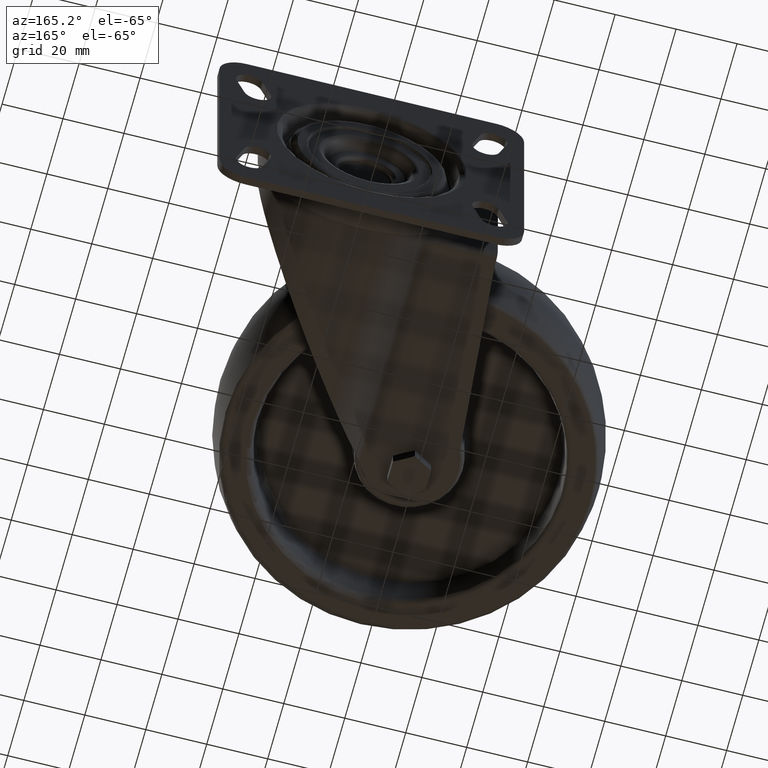
[diagram: clean part render]
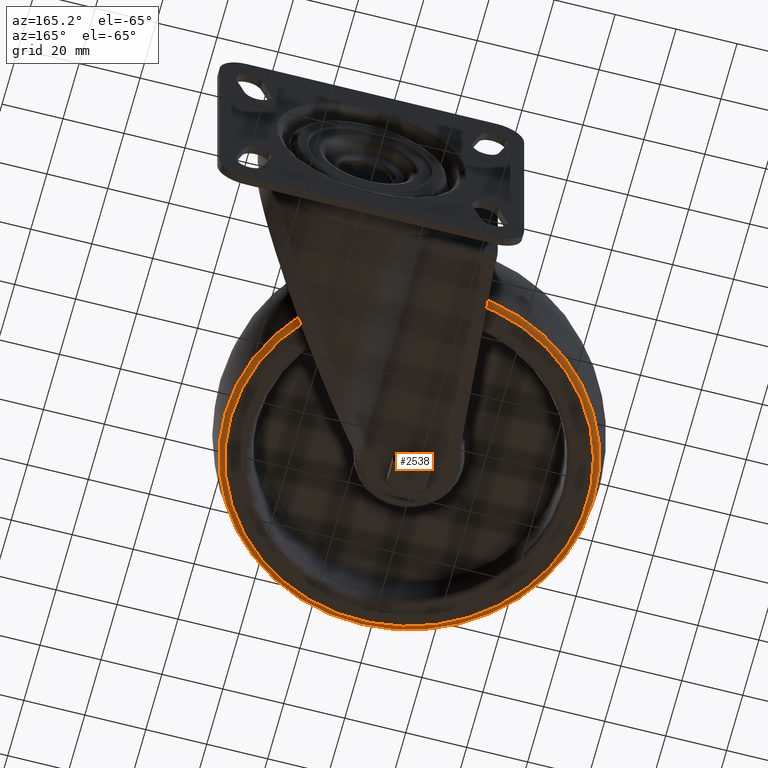
[diagram: same view with one face highlighted and labeled with its STEP entity id]
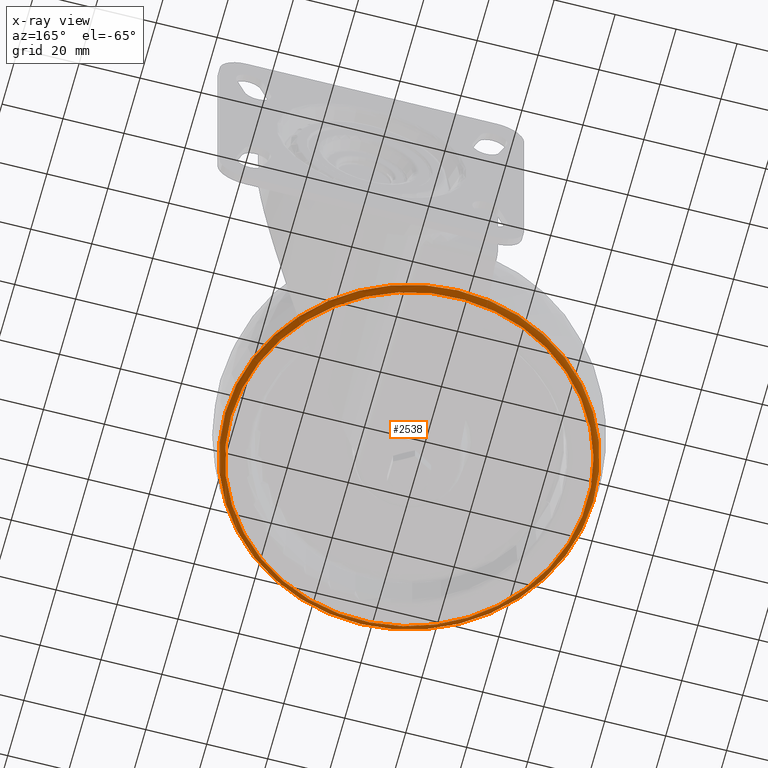
[diagram: x-ray of the same camera — body ghosted, the highlighted face saturated]
A machine part, auxiliary view. The second image highlights one B-rep face of the part: STEP entity #2538.
The next image is the same camera in x-ray: the body ghosted, the highlighted face saturated — about 0% of this face is hidden behind the body in this view.
In plain terms, the highlighted toroidal blend (fillet) surface has major radius 58.4808 mm and minor (blend) radius 2 mm.
Its self-contained STEP definition (entity closure, byte-faithful):
#98=TOROIDAL_SURFACE('',#2865,58.4807660688538,2.00000000000001);
#321=FACE_OUTER_BOUND('',#492,.T.);
#492=EDGE_LOOP('',(#2160,#2161,#2162,#2163,#2164));
#662=CIRCLE('',#2866,58.4807660688538);
#663=CIRCLE('',#2867,2.00000000000001);
#664=CIRCLE('',#2868,60.4140145339399);
#665=CIRCLE('',#2869,60.4140145339399);
#1145=VERTEX_POINT('',#4654);
#1146=VERTEX_POINT('',#4656);
#1147=VERTEX_POINT('',#4658);
#1487=EDGE_CURVE('',#1145,#1145,#662,.T.);
#1488=EDGE_CURVE('',#1145,#1146,#663,.T.);
#1489=EDGE_CURVE('',#1146,#1147,#664,.T.);
#1490=EDGE_CURVE('',#1147,#1146,#665,.T.);
#2160=ORIENTED_EDGE('',*,*,#1487,.F.);
#2161=ORIENTED_EDGE('',*,*,#1488,.T.);
#2162=ORIENTED_EDGE('',*,*,#1489,.T.);
#2163=ORIENTED_EDGE('',*,*,#1490,.T.);
#2164=ORIENTED_EDGE('',*,*,#1488,.F.);
#2538=ADVANCED_FACE('',(#321),#98,.T.);
#2865=AXIS2_PLACEMENT_3D('',#4653,#3600,#3601);
#2866=AXIS2_PLACEMENT_3D('',#4655,#3602,#3603);
#2867=AXIS2_PLACEMENT_3D('',#4657,#3604,#3605);
#2868=AXIS2_PLACEMENT_3D('',#4659,#3606,#3607);
#2869=AXIS2_PLACEMENT_3D('',#4660,#3608,#3609);
#3600=DIRECTION('center_axis',(0.,0.,-1.));
#3601=DIRECTION('ref_axis',(-1.,0.,0.));
#3602=DIRECTION('center_axis',(0.,0.,-1.));
#3603=DIRECTION('ref_axis',(1.,0.,0.));
#3604=DIRECTION('center_axis',(-1.22464679914735E-16,-1.,0.));
#3605=DIRECTION('ref_axis',(1.,-1.22464679914735E-16,0.));
#3606=DIRECTION('center_axis',(0.,0.,-1.));
#3607=DIRECTION('ref_axis',(1.,0.,0.));
#3608=DIRECTION('center_axis',(0.,0.,-1.));
#3609=DIRECTION('ref_axis',(1.,0.,0.));
#4653=CARTESIAN_POINT('Origin',(0.,0.,-15.5));
#4654=CARTESIAN_POINT('',(58.4807660688538,-1.43231835408637E-14,-17.5));
#4655=CARTESIAN_POINT('Origin',(0.,0.,-17.5));
#4656=CARTESIAN_POINT('',(60.4140145339399,-1.4796677211636E-14,-16.0123966942149));
#4657=CARTESIAN_POINT('Origin',(58.4807660688538,-7.1618282977907E-15,-15.5));
#4658=CARTESIAN_POINT('',(-60.4140145339399,-7.39858295226312E-15,-16.0123966942149));
#4659=CARTESIAN_POINT('Origin',(0.,0.,-16.0123966942149));
#4660=CARTESIAN_POINT('Origin',(0.,0.,-16.0123966942149));